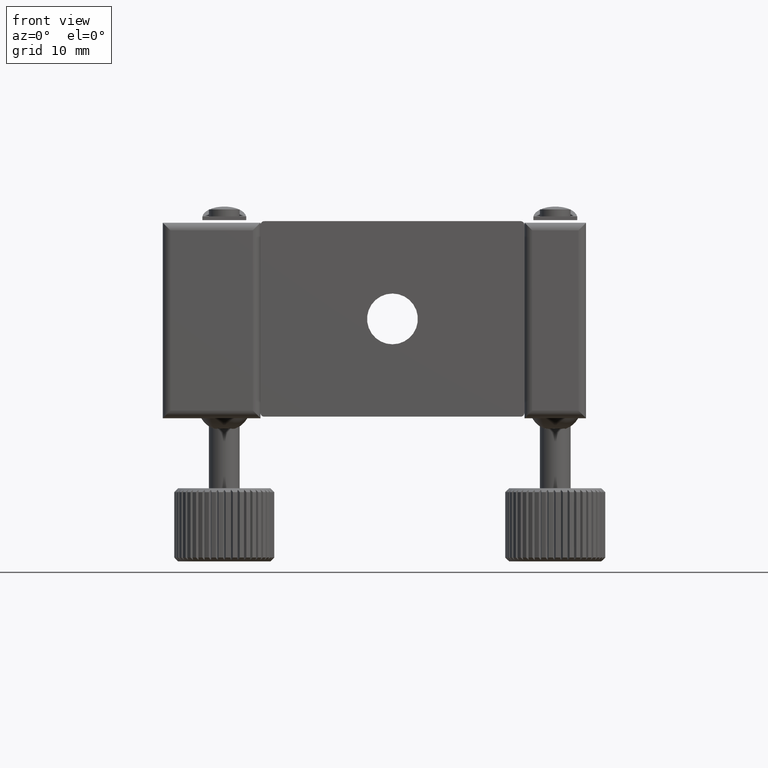
[diagram: clean part render]
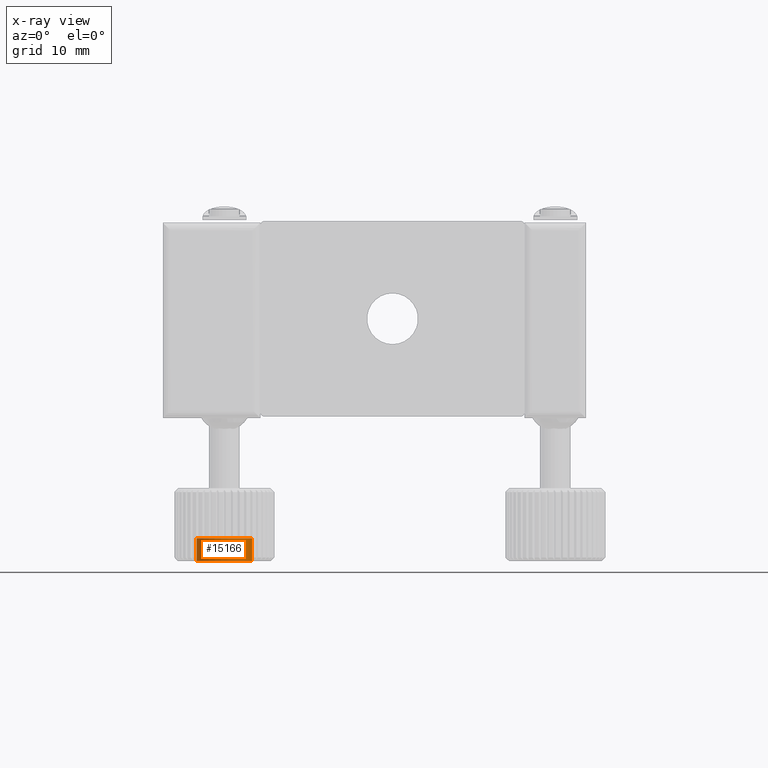
[diagram: x-ray — body ghosted, one internal face saturated and labeled with its STEP entity id]
A machine part, front view, then the same camera in x-ray: the body is ghosted and one INTERNAL B-rep face — a face not visible from any outside direction — is saturated and labeled: STEP entity #15166.
In plain terms, the highlighted cylindrical surface (bore or boss wall) has radius 3.6 mm, axis along (-0, -0, -1).
Its self-contained STEP definition (entity closure, byte-faithful):
#804 = AXIS2_PLACEMENT_3D ( 'NONE', #6432, #6433, #6434 ) ;
#805 = AXIS2_PLACEMENT_3D ( 'NONE', #6435, #6436, #6437 ) ;
#874 = AXIS2_PLACEMENT_3D ( 'NONE', #6840, #6837, #6831 ) ;
#5167 = CIRCLE ( 'NONE', #804, 3.600000000000002300 ) ;
#5170 = CIRCLE ( 'NONE', #805, 3.600000000000002300 ) ;
#5312 = FACE_OUTER_BOUND ( 'NONE', #17844, .T. ) ;
#5320 = FACE_OUTER_BOUND ( 'NONE', #17834, .T. ) ;
#5322 = CYLINDRICAL_SURFACE ( 'NONE', #874, 3.600000000000002300 ) ;
#5932 = VERTEX_POINT ( 'NONE', #9508 ) ;
#5933 = VERTEX_POINT ( 'NONE', #9509 ) ;
#6432 = CARTESIAN_POINT ( 'NONE',  ( -28.33249027237353700, 28.16333045107364800, -31.50000000000001400 ) ) ;
#6433 = DIRECTION ( 'NONE',  ( 0.0000000000000000000, 0.0000000000000000000, -1.000000000000000000 ) ) ;
#6434 = DIRECTION ( 'NONE',  ( -1.000000000000000000, 0.0000000000000000000, 0.0000000000000000000 ) ) ;
#6435 = CARTESIAN_POINT ( 'NONE',  ( -28.33249027237353700, 28.16333045107364800, -28.50000000000001400 ) ) ;
#6436 = DIRECTION ( 'NONE',  ( 0.0000000000000000000, 0.0000000000000000000, -1.000000000000000000 ) ) ;
#6437 = DIRECTION ( 'NONE',  ( -1.000000000000000000, 0.0000000000000000000, 0.0000000000000000000 ) ) ;
#6831 = DIRECTION ( 'NONE',  ( -1.000000000000000000, 0.0000000000000000000, 0.0000000000000000000 ) ) ;
#6837 = DIRECTION ( 'NONE',  ( -0.0000000000000000000, -0.0000000000000000000, -1.000000000000000000 ) ) ;
#6840 = CARTESIAN_POINT ( 'NONE',  ( -28.33249027237353700, 28.16333045107364800, -28.50000000000001400 ) ) ;
#9508 = CARTESIAN_POINT ( 'NONE',  ( -31.93249027237354200, 28.16333045107364800, -31.50000000000001400 ) ) ;
#9509 = CARTESIAN_POINT ( 'NONE',  ( -31.93249027237354200, 28.16333045107364800, -28.50000000000001400 ) ) ;
#15040 = EDGE_CURVE ( 'NONE', #5932, #5932, #5167, .T. ) ;
#15041 = EDGE_CURVE ( 'NONE', #5933, #5933, #5170, .T. ) ;
#15166 = ADVANCED_FACE ( 'NONE', ( #5312, #5320 ), #5322, .F. ) ;
#15983 = ORIENTED_EDGE ( 'NONE', *, *, #15041, .F. ) ;
#15984 = ORIENTED_EDGE ( 'NONE', *, *, #15040, .T. ) ;
#17834 = EDGE_LOOP ( 'NONE', ( #15984 ) ) ;
#17844 = EDGE_LOOP ( 'NONE', ( #15983 ) ) ;